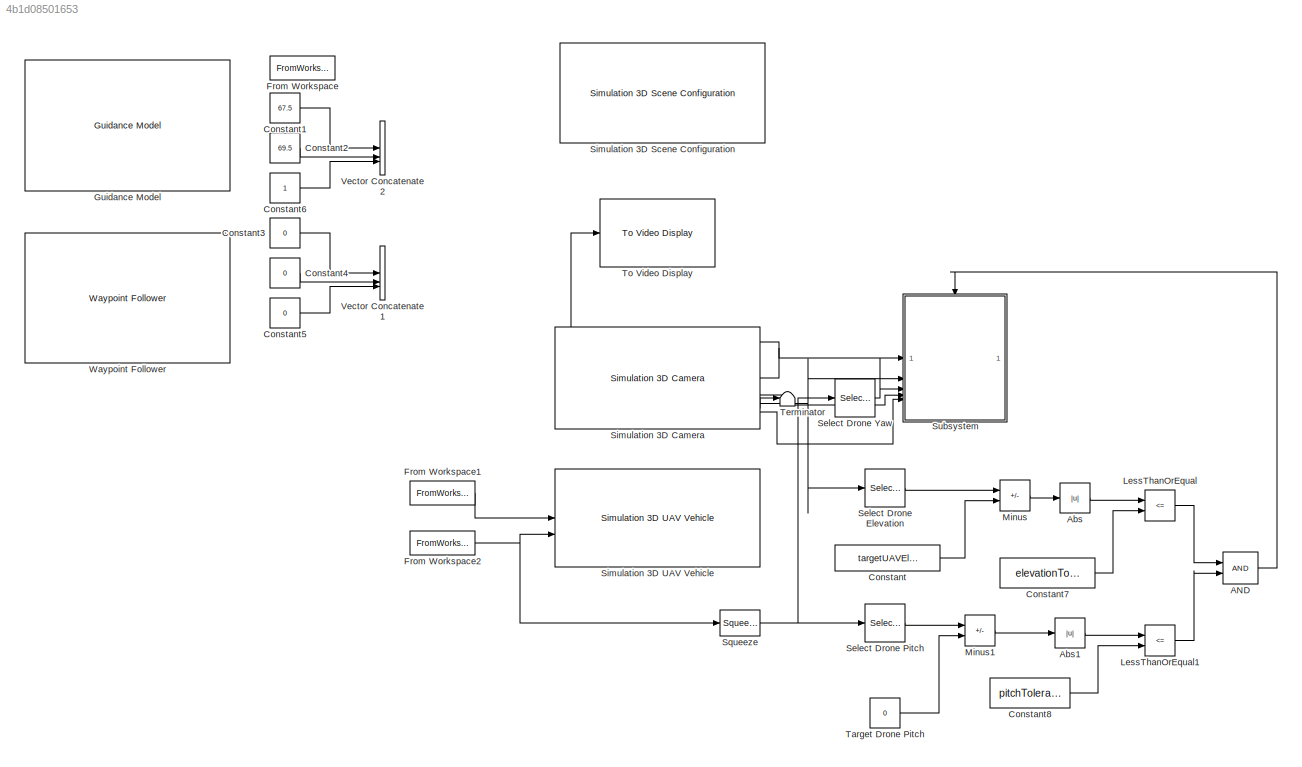
MODEL slx_4b1d08501653
KIND model
CONFIG AbsTol = auto
CONFIG EnableMultiTasking = off
CONFIG FixedStep = auto
CONFIG MaxStep = auto
CONFIG MinStep = auto
CONFIG RelTol = 1e-3
CONFIG SampleTimeConstraint = Unconstrained
CONFIG SolverName = VariableStepAuto
CONFIG StartTime = 0.0
CONFIG StopTime = 5
BLOCK [Logic] AND
  AllPortsSameDT = off
  IconShape = distinctive
  OutDataTypeStr = boolean
BLOCK [Abs] Abs
  SaturateOnIntegerOverflow = off
BLOCK [Abs] Abs1
  SaturateOnIntegerOverflow = off
BLOCK [Constant] Constant
  Value = targetUAVElevation
BLOCK [Constant] Constant1
  Commented = on
  Value = 67.5
BLOCK [Constant] Constant2
  Commented = on
  Value = 69.5
BLOCK [Constant] Constant3
  Commented = on
  Value = 0
BLOCK [Constant] Constant4
  Commented = on
  Value = 0
BLOCK [Constant] Constant5
  Commented = on
  Value = 0
BLOCK [Constant] Constant6
  Commented = on
BLOCK [Constant] Constant7
  Value = elevationTolerance
BLOCK [Constant] Constant8
  Value = pitchTolerance
BLOCK [FromWorkspace] From Workspace
  Commented = on
  VariableName = time_path
BLOCK [FromWorkspace] From Workspace1
  VariableName = positionTbl
BLOCK [FromWorkspace] From Workspace2
  VariableName = rotationTbl
BLOCK [Reference] Guidance Model  REF=uavalgslib/Guidance Model
  Commented = on
  NameLocation = top
  SourceBlock = uavalgslib/Guidance Model
  SourceType = Guidance Model
BLOCK [RelationalOperator] LessThanOrEqual
  InputSameDT = off
  Operator = <=
  OutDataTypeStr = boolean
  RndMeth = Simplest
BLOCK [RelationalOperator] LessThanOrEqual1
  InputSameDT = off
  Operator = <=
  OutDataTypeStr = boolean
  RndMeth = Simplest
BLOCK [Sum] Minus
  IconShape = rectangular
  Inputs = +-
BLOCK [Sum] Minus1
  IconShape = rectangular
  Inputs = +-
BLOCK [Selector] Select Drone Elevation
  IndexOptions = Index vector (dialog)
  Indices = [3]
  InputPortWidth = 3
  OutputSizes = 1
BLOCK [Selector] Select Drone Pitch
  IndexOptions = Index vector (dialog)
  Indices = [2]
  InputPortWidth = 3
  OutputSizes = 1
BLOCK [Selector] Select Drone Yaw
  IndexOptions = Index vector (dialog)
  Indices = [2]
  InputPortWidth = 3
  OutputSizes = 1
BLOCK [Reference] Simulation 3D Camera  REF=sim3dcameralib/Simulation 3D Camera
  LibrarySourceBlock = uavsim3dlib/Simulation 3D Camera
  Priority = 1
  SourceBlock = sim3dcameralib/Simulation 3D Camera
  SourceType = Simulation 3D Camera
BLOCK [Reference] Simulation 3D Scene Configuration  REF=sim3dlib/Simulation 3D Scene Configuration
  LibrarySourceBlock = uavsim3dlib/Simulation 3D Scene Configuration
  Priority = 0
  SourceBlock = sim3dlib/Simulation 3D Scene Configuration
  SourceType = Simulation 3D Scene Configuration
BLOCK [Reference] Simulation 3D UAV Vehicle  REF=uavsim3dlib/Simulation 3D UAV Vehicle
  Priority = -1
  SourceBlock = uavsim3dlib/Simulation 3D UAV Vehicle
  SourceType = Simulation 3D UAV Vehicle
BLOCK [Squeeze] Squeeze
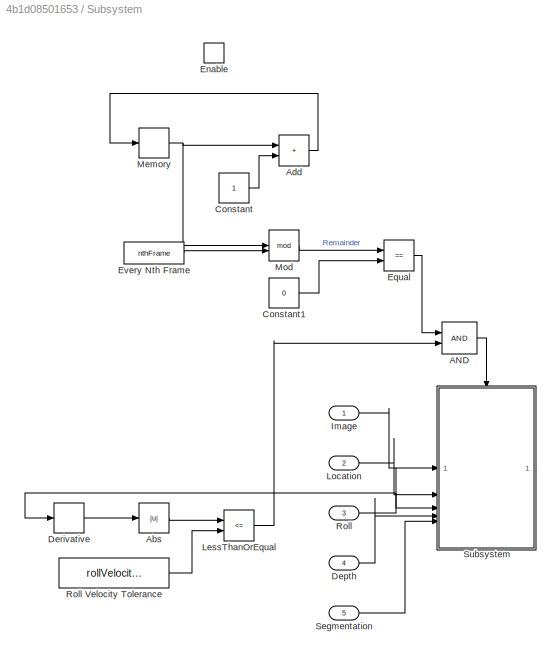
BLOCK [SubSystem] Subsystem
BLOCK [Logic] Subsystem/AND
  AllPortsSameDT = off
  IconShape = distinctive
  OutDataTypeStr = boolean
BLOCK [Abs] Subsystem/Abs
  SaturateOnIntegerOverflow = off
BLOCK [Sum] Subsystem/Add
  IconShape = rectangular
BLOCK [Constant] Subsystem/Constant
BLOCK [Constant] Subsystem/Constant1
  Value = 0
BLOCK [Inport] Subsystem/Depth
  Port = 4
BLOCK [Derivative] Subsystem/Derivative
BLOCK [EnablePort] Subsystem/Enable
  PropagateVarSize = During execution
BLOCK [RelationalOperator] Subsystem/Equal
  InputSameDT = off
  Operator = ==
  OutDataTypeStr = boolean
  RndMeth = Simplest
BLOCK [Constant] Subsystem/Every Nth Frame
  Value = nthFrame
BLOCK [Inport] Subsystem/Image
BLOCK [RelationalOperator] Subsystem/LessThanOrEqual
  InputSameDT = off
  Operator = <=
  OutDataTypeStr = boolean
  RndMeth = Simplest
BLOCK [Inport] Subsystem/Location
  Port = 2
BLOCK [Memory] Subsystem/Memory
BLOCK [Math] Subsystem/Mod
  Operator = mod
BLOCK [Inport] Subsystem/Roll
  Port = 3
BLOCK [Constant] Subsystem/Roll Velocity Tolerance
  Value = rollVelocityTolerance
BLOCK [Inport] Subsystem/Segmentation
  Port = 5
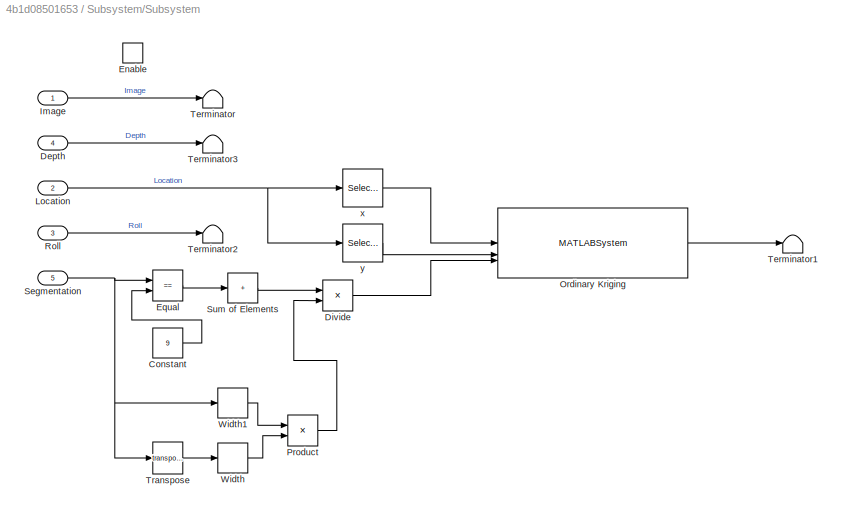
BLOCK [SubSystem] Subsystem/Subsystem
BLOCK [Constant] Subsystem/Subsystem/Constant
  Value = 9
BLOCK [Inport] Subsystem/Subsystem/Depth
  Port = 4
BLOCK [Product] Subsystem/Subsystem/Divide
  Inputs = */
BLOCK [EnablePort] Subsystem/Subsystem/Enable
  PropagateVarSize = During execution
BLOCK [RelationalOperator] Subsystem/Subsystem/Equal
  InputSameDT = off
  Operator = ==
  OutDataTypeStr = boolean
  RndMeth = Simplest
BLOCK [Inport] Subsystem/Subsystem/Image
BLOCK [Inport] Subsystem/Subsystem/Location
  Port = 2
BLOCK [MATLABSystem] Subsystem/Subsystem/Ordinary Kriging
  MaskDisplay = disp('pythonOrdinaryKriging');\nport_label('input',1,'x');\nport_label('input',2,'y');\nport_label('input',3,'z');\nport_label('output',1,'zstar');
  MaskType = pythonOrdinaryKriging
  SimulateUsing = Interpreted execution
  System = pythonOrdinaryKriging
BLOCK [Product] Subsystem/Subsystem/Product
BLOCK [Inport] Subsystem/Subsystem/Roll
  Port = 3
BLOCK [Inport] Subsystem/Subsystem/Segmentation
  Port = 5
BLOCK [Sum] Subsystem/Subsystem/Sum of Elements
  IconShape = rectangular
  Inputs = +
BLOCK [Terminator] Subsystem/Subsystem/Terminator
BLOCK [Terminator] Subsystem/Subsystem/Terminator1
BLOCK [Terminator] Subsystem/Subsystem/Terminator2
BLOCK [Terminator] Subsystem/Subsystem/Terminator3
BLOCK [Math] Subsystem/Subsystem/Transpose
  Operator = transpose
BLOCK [Width] Subsystem/Subsystem/Width
BLOCK [Width] Subsystem/Subsystem/Width1
BLOCK [Selector] Subsystem/Subsystem/x
  IndexOptions = Index vector (dialog)
  Indices = [1]
  InputPortWidth = 3
  OutputSizes = 1
BLOCK [Selector] Subsystem/Subsystem/y
  IndexOptions = Index vector (dialog)
  Indices = [2]
  InputPortWidth = 3
  OutputSizes = 1
BLOCK [Constant] Target Drone Pitch
  Value = 0
BLOCK [Terminator] Terminator
BLOCK [Reference] To Video Display  REF=visionsinks/To Video Display
  SourceBlock = visionsinks/To Video Display
  SourceType = To Video Display
BLOCK [Concatenate] Vector Concatenate1
  Commented = on
  NumInputs = 3
BLOCK [Concatenate] Vector Concatenate2
  Commented = on
  NumInputs = 3
BLOCK [Reference] Waypoint Follower  REF=uavalgslib/Waypoint Follower
  Commented = on
  NameLocation = top
  SourceBlock = uavalgslib/Waypoint Follower
  SourceType = uav.sluav.internal.system.WaypointFollower
LINE AND:1 -> Subsystem:enable
LINE Abs1:1 -> LessThanOrEqual1:1
LINE Abs:1 -> LessThanOrEqual:1
LINE Constant1:1 -> Vector Concatenate2:1
LINE Constant2:1 -> Vector Concatenate2:2
LINE Constant3:1 -> Vector Concatenate1:1
LINE Constant4:1 -> Vector Concatenate1:2
LINE Constant5:1 -> Vector Concatenate1:3
LINE Constant6:1 -> Vector Concatenate2:3
LINE Constant7:1 -> LessThanOrEqual:2
LINE Constant8:1 -> LessThanOrEqual1:2
LINE Constant:1 -> Minus:2
LINE From Workspace1:1 -> Simulation 3D UAV Vehicle:1
NET From Workspace2:1 -> Simulation 3D UAV Vehicle:2, Squeeze:1
LINE LessThanOrEqual1:1 -> AND:2
LINE LessThanOrEqual:1 -> AND:1
LINE Minus1:1 -> Abs1:1
LINE Minus:1 -> Abs:1
LINE Select Drone Elevation:1 -> Minus:1
LINE Select Drone Pitch:1 -> Minus1:1
LINE Select Drone Yaw:1 -> Subsystem:3
NET Simulation 3D Camera:1 -> Subsystem:1, To Video Display:1
LINE Simulation 3D Camera:2 -> Subsystem:4
NET Simulation 3D Camera:3 -> Select Drone Elevation:1, Subsystem:2
LINE Simulation 3D Camera:4 -> Terminator:1
LINE Simulation 3D Camera:5 -> Subsystem:5
NET Squeeze:1 -> Select Drone Pitch:1, Select Drone Yaw:1
LINE Subsystem/AND:1 -> Subsystem/Subsystem:enable
LINE Subsystem/Abs:1 -> Subsystem/LessThanOrEqual:1
LINE Subsystem/Add:1 -> Subsystem/Memory:1
LINE Subsystem/Constant1:1 -> Subsystem/Equal:2
LINE Subsystem/Constant:1 -> Subsystem/Add:2
LINE Subsystem/Depth:1 -> Subsystem/Subsystem:4
LINE Subsystem/Derivative:1 -> Subsystem/Abs:1
LINE Subsystem/Equal:1 -> Subsystem/AND:1
LINE Subsystem/Every Nth Frame:1 -> Subsystem/Mod:2
LINE Subsystem/Image:1 -> Subsystem/Subsystem:1
LINE Subsystem/LessThanOrEqual:1 -> Subsystem/AND:2
LINE Subsystem/Location:1 -> Subsystem/Subsystem:2
NET Subsystem/Memory:1 -> Subsystem/Add:1, Subsystem/Mod:1
LINE Subsystem/Mod:1 -> Subsystem/Equal:1
LINE Subsystem/Roll Velocity Tolerance:1 -> Subsystem/LessThanOrEqual:2
NET Subsystem/Roll:1 -> Subsystem/Derivative:1, Subsystem/Subsystem:3
LINE Subsystem/Segmentation:1 -> Subsystem/Subsystem:5
LINE Subsystem/Subsystem/Constant:1 -> Subsystem/Subsystem/Equal:2
LINE Subsystem/Subsystem/Depth:1 -> Subsystem/Subsystem/Terminator3:1
LINE Subsystem/Subsystem/Divide:1 -> Subsystem/Subsystem/Ordinary Kriging:3
LINE Subsystem/Subsystem/Equal:1 -> Subsystem/Subsystem/Sum of Elements:1
LINE Subsystem/Subsystem/Image:1 -> Subsystem/Subsystem/Terminator:1
NET Subsystem/Subsystem/Location:1 -> Subsystem/Subsystem/x:1, Subsystem/Subsystem/y:1
LINE Subsystem/Subsystem/Ordinary Kriging:1 -> Subsystem/Subsystem/Terminator1:1
LINE Subsystem/Subsystem/Product:1 -> Subsystem/Subsystem/Divide:2
LINE Subsystem/Subsystem/Roll:1 -> Subsystem/Subsystem/Terminator2:1
NET Subsystem/Subsystem/Segmentation:1 -> Subsystem/Subsystem/Equal:1, Subsystem/Subsystem/Transpose:1, Subsystem/Subsystem/Width1:1
LINE Subsystem/Subsystem/Sum of Elements:1 -> Subsystem/Subsystem/Divide:1
LINE Subsystem/Subsystem/Transpose:1 -> Subsystem/Subsystem/Width:1
LINE Subsystem/Subsystem/Width1:1 -> Subsystem/Subsystem/Product:1
LINE Subsystem/Subsystem/Width:1 -> Subsystem/Subsystem/Product:2
LINE Subsystem/Subsystem/x:1 -> Subsystem/Subsystem/Ordinary Kriging:1
LINE Subsystem/Subsystem/y:1 -> Subsystem/Subsystem/Ordinary Kriging:2
LINE Target Drone Pitch:1 -> Minus1:2
note: NET lines group one-source signal fan-out (src -> all destinations, sorted); 1:1 wires keep LINE
